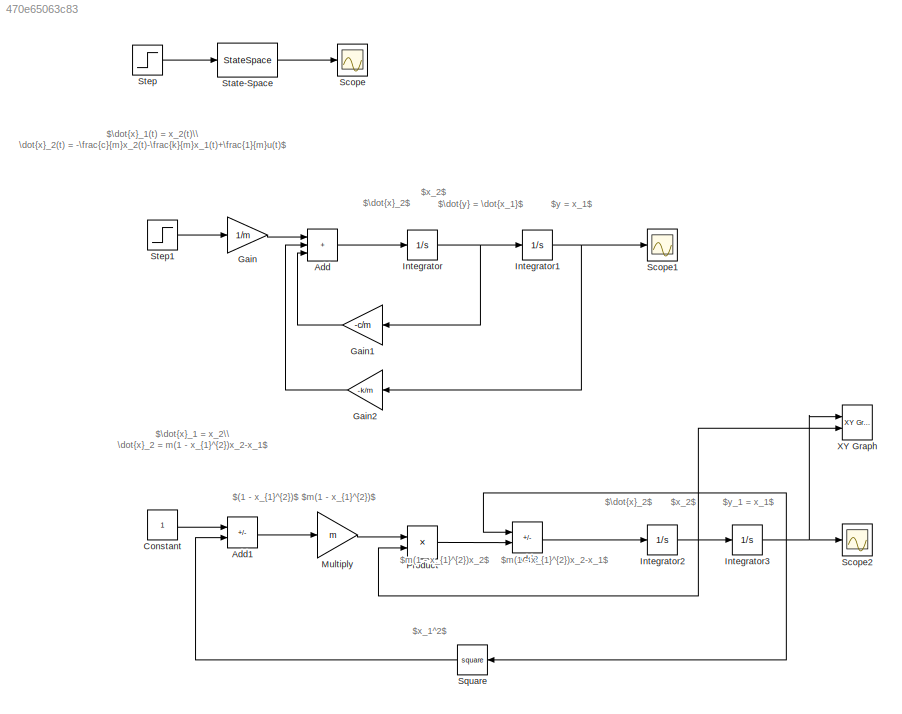
MODEL slx_470e65063c83
KIND model
CONFIG AbsTol = auto
CONFIG EnableMultiTasking = off
CONFIG FixedStep = auto
CONFIG MaxStep = auto
CONFIG MinStep = auto
CONFIG RelTol = 1e-3
CONFIG SampleTimeConstraint = Unconstrained
CONFIG SolverName = VariableStepAuto
CONFIG StartTime = 0.0
CONFIG StopTime = 10.0
BLOCK [Sum] Add
  IconShape = rectangular
  Inputs = +++
  Ports = [3, 1]
BLOCK [Sum] Add1
  IconShape = rectangular
  Inputs = +-
  Ports = [2, 1]
BLOCK [Sum] Add2
  IconShape = rectangular
  Inputs = -+
  Ports = [2, 1]
BLOCK [Constant] Constant
BLOCK [Gain] Gain
  Gain = 1/m
BLOCK [Gain] Gain1
  Gain = -c/m
BLOCK [Gain] Gain2
  Gain = -k/m
BLOCK [Integrator] Integrator
  Ports = [1, 1]
BLOCK [Integrator] Integrator1
  Ports = [1, 1]
BLOCK [Integrator] Integrator2
  InitialCondition = 2
  Ports = [1, 1]
BLOCK [Integrator] Integrator3
  InitialCondition = 1
  Ports = [1, 1]
BLOCK [Gain] Multiply
  Gain = m
BLOCK [Product] Product
  Ports = [2, 1]
BLOCK [Scope] Scope
  Floating = off
  NumInputPorts = 1
  Ports = [1]
  ScopeSpecificationString = Simulink.scopes.TimeScopeBlockCfg('CurrentConfiguration', extmgr.ConfigurationSet(extmgr.Configuration('Core','General UI',true),extmgr.Configuration('Core','Source UI',true),extmgr.Configuration('Sources','WiredSimulink',true),extmgr.Configuration('Visuals','Time Domain',true,'SerializedDisplays',{struct('MinYLimReal','-0.12332','MaxYLimReal','1.10989','YLabelReal','','MinYLimMag','0.00000','MaxY...<+1360ch>
BLOCK [Scope] Scope1
  Floating = off
  NumInputPorts = 1
  Ports = [1]
  ScopeSpecificationString = Simulink.scopes.TimeScopeBlockCfg('CurrentConfiguration', extmgr.ConfigurationSet(extmgr.Configuration('Core','General UI',true),extmgr.Configuration('Core','Source UI',true),extmgr.Configuration('Sources','WiredSimulink',true,'DataLoggingVariableName','ScopeData1'),extmgr.Configuration('Visuals','Time Domain',true,'SerializedDisplays',{struct('MinYLimReal','-0.12179','MaxYLimReal','1.09611','YLab...<+1399ch>
BLOCK [Scope] Scope2
  Floating = off
  NumInputPorts = 1
  Ports = [1]
  ScopeSpecificationString = Simulink.scopes.TimeScopeBlockCfg('CurrentConfiguration', extmgr.ConfigurationSet(extmgr.Configuration('Core','General UI',true),extmgr.Configuration('Core','Source UI',true),extmgr.Configuration('Sources','WiredSimulink',true,'DataLoggingVariableName','ScopeData1'),extmgr.Configuration('Visuals','Time Domain',true,'SerializedDisplays',{struct('MinYLimReal','-2.4944','MaxYLimReal','2.50482','YLabe...<+1423ch>
BLOCK [Math] Square
  Operator = square
  Ports = [1, 1]
BLOCK [StateSpace] State-Space
  A = [0 1; -0.5 -1.5]
  B = [0; 0.5]
  C = [1,0]
  D = 0
  InitialCondition = 0
  Ports = [1, 1]
BLOCK [Step] Step
  SampleTime = 0
  Time = 0
BLOCK [Step] Step1
  SampleTime = 0
  Time = 0
BLOCK [Reference] XY Graph  REF=simulink/Sinks/XY Graph
  Ports = [2]
  SourceBlock = simulink/Sinks/XY Graph
  SourceProductBaseCode = SL
  SourceType = XY scope.
ANNOTATION (root): $(1 - x_{1}^{2})$
ANNOTATION (root): $\dot{x}_1 = x_2\\ \dot{x}_2 = m(1 - x_{1}^{2})x_2-x_1$
ANNOTATION (root): $\dot{x}_1(t) = x_2(t)\\ \dot{x}_2(t) = -\frac{c}{m}x_2(t)-\frac{k}{m}x_1(t)+\frac{1}{m}u(t)$
ANNOTATION (root): $\dot{x}_2$
ANNOTATION (root): $\dot{y} = \dot{x_1}$
ANNOTATION (root): $m(1 - x_{1}^{2})$
ANNOTATION (root): $m(1 - x_{1}^{2})x_2$
ANNOTATION (root): $m(1 - x_{1}^{2})x_2-x_1$
ANNOTATION (root): $x_1^2$
ANNOTATION (root): $x_2$
ANNOTATION (root): $y = x_1$
ANNOTATION (root): $y_1 = x_1$
LINE Add1:1 -> Multiply:1
LINE Add2:1 -> Integrator2:1
LINE Add:1 -> Integrator:1
LINE Constant:1 -> Add1:1
LINE Gain1:1 -> Add:3
LINE Gain2:1 -> Add:2
LINE Gain:1 -> Add:1
NET Integrator1:1 -> Gain2:1, Scope1:1
NET Integrator2:1 -> Integrator3:1, Product:2, XY Graph:2
NET Integrator3:1 -> Add2:1, Scope2:1, Square:1, XY Graph:1
NET Integrator:1 -> Gain1:1, Integrator1:1
LINE Multiply:1 -> Product:1
LINE Product:1 -> Add2:2
LINE Square:1 -> Add1:2
LINE State-Space:1 -> Scope:1
LINE Step1:1 -> Gain:1
LINE Step:1 -> State-Space:1
note: NET lines group one-source signal fan-out (src -> all destinations, sorted); 1:1 wires keep LINE
